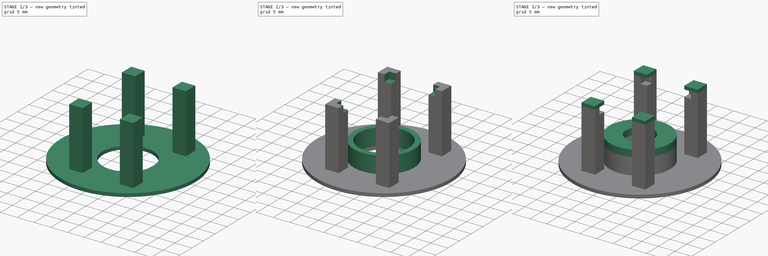
[diagram: build sequence overview — one tinted view per stage of 3, left to right]
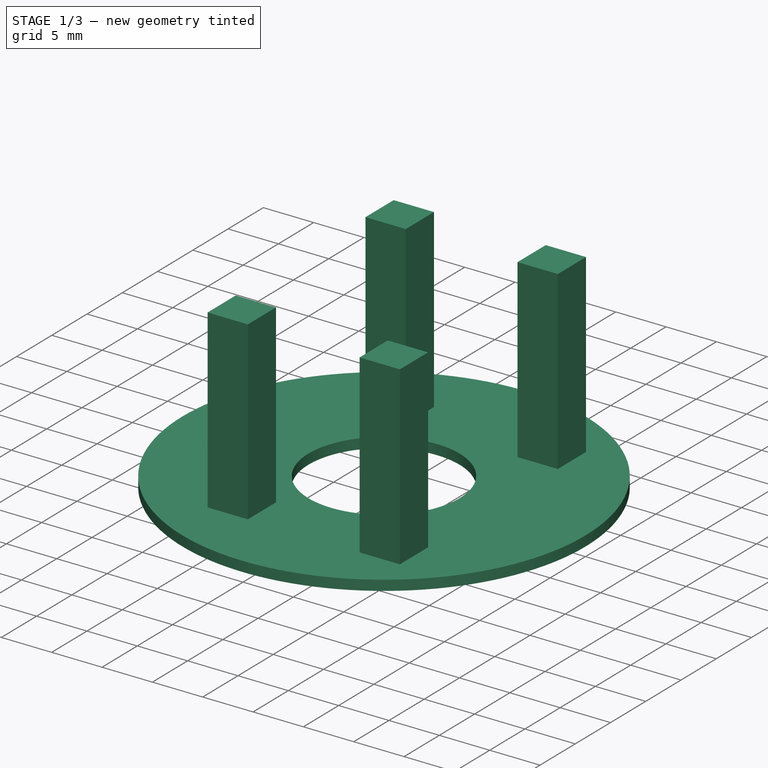
[diagram: stage 1 of 3 — iso view after this stage's code; geometry added in this stage tinted green]
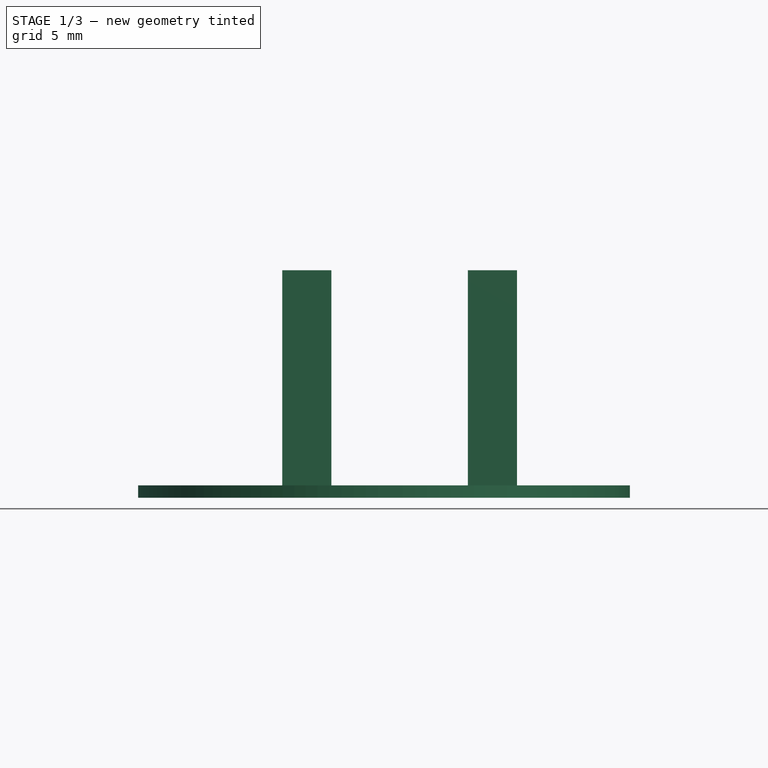
[diagram: stage 1 of 3 — front view after this stage's code; geometry added in this stage tinted green]
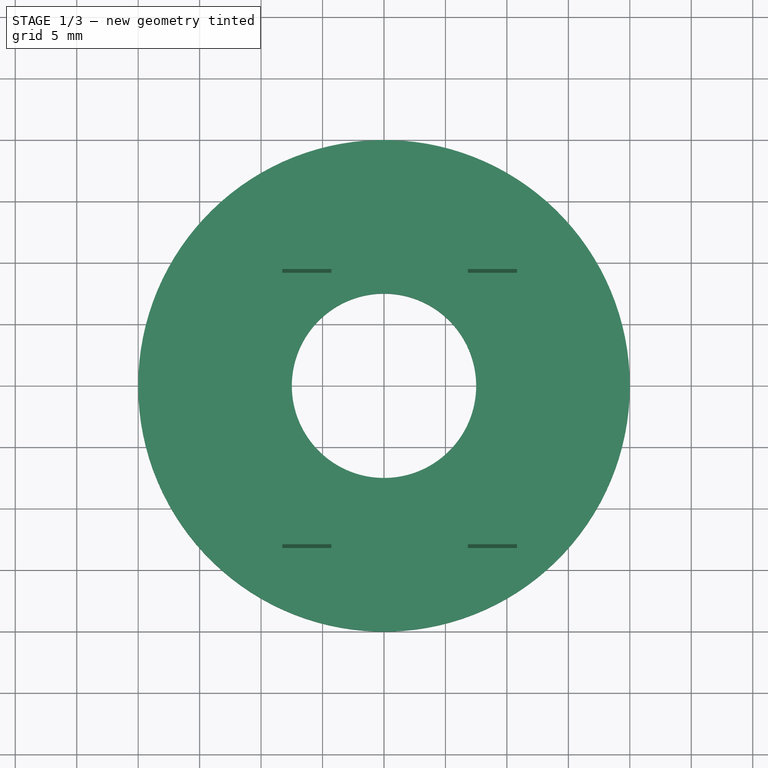
[diagram: stage 1 of 3 — top view after this stage's code; geometry added in this stage tinted green]
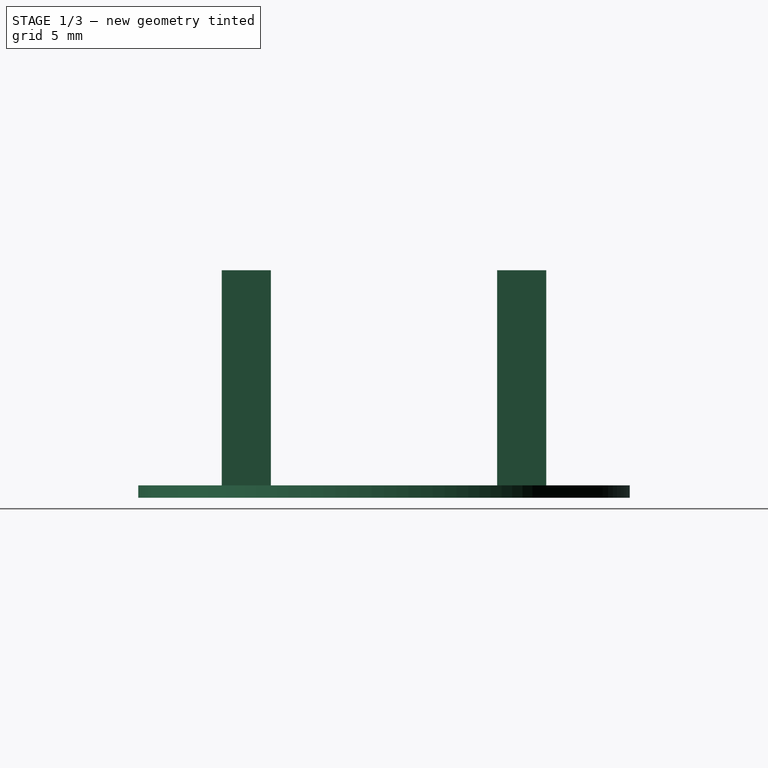
[diagram: stage 1 of 3 — right view after this stage's code; geometry added in this stage tinted green]
FCSTD DOCUMENT  (FreeCAD 0.19R24291 (Git))
Label: windDirectionPCB
License: All rights reserved
LicenseURL: http://en.wikipedia.org/wiki/All_rights_reserved
objects: Sketcher::SketchObject×6, PartDesign::Pad×5, PartDesign::Pocket×1, PartDesign::Body×1
note: 19 computed .brp shape members not serialized (recipe doc carries the construction recipe); baked Part::Feature solids carry a one-line shape summary decoded from their .brp

FEATURE [Sketcher::SketchObject] Sketch
  FullyConstrained = true
  MapMode = 5
  Support = -> [XY_Plane]
  sketch-geometry (2):
    g0: Circle CenterX=0 CenterY=0 CenterZ=0 NormalX=0 NormalY=0 NormalZ=1 AngleXU=0 Radius=20
    g1: Circle CenterX=0 CenterY=0 CenterZ=0 NormalX=0 NormalY=0 NormalZ=1 AngleXU=0 Radius=7.5
  constraints (4):
    c: Coincident(g0,g-1)
    c: Coincident(g1,g0)
    c: Radius(g1) = 7.5
    c: Radius(g0) = 20
FEATURE [PartDesign::Pad] Pad
  Direction = (1,1,1)
  Length = 1
  Length2 = 100
  Profile = -> Sketch
  Type = 0
FEATURE [Sketcher::SketchObject] Sketch001
  FullyConstrained = true
  MapMode = 5
  Placement = pos=(0,0,1) rot=(0,0,1;0rad)
  Support = -> [Pad]
  sketch-geometry (20):
    g0: LineSegment StartX=-8.28 StartY=13.2 StartZ=0 EndX=-4.28 EndY=13.2 EndZ=0
    g1: LineSegment StartX=-4.28 StartY=13.2 StartZ=0 EndX=-4.28 EndY=9.2 EndZ=0
    g2: LineSegment StartX=-4.28 StartY=9.2 StartZ=0 EndX=-8.28 EndY=9.2 EndZ=0
    g3: LineSegment StartX=-8.28 StartY=9.2 StartZ=0 EndX=-8.28 EndY=13.2 EndZ=0
    g4: LineSegment StartX=6.82 StartY=13.2 StartZ=0 EndX=10.82 EndY=13.2 EndZ=0
    g5: LineSegment StartX=10.82 StartY=13.2 StartZ=0 EndX=10.82 EndY=9.2 EndZ=0
    g6: LineSegment StartX=10.82 StartY=9.2 StartZ=0 EndX=6.82 EndY=9.2 EndZ=0
    g7: LineSegment StartX=6.82 StartY=9.2 StartZ=0 EndX=6.82 EndY=13.2 EndZ=0
    g8: LineSegment StartX=-8.28 StartY=-9.2 StartZ=0 EndX=-4.28 EndY=-9.2 EndZ=0
    g9: LineSegment StartX=-4.28 StartY=-9.2 StartZ=0 EndX=-4.28 EndY=-13.2 EndZ=0
    g10: LineSegment StartX=-4.28 StartY=-13.2 StartZ=0 EndX=-8.28 EndY=-13.2 EndZ=0
    g11: LineSegment StartX=-8.28 StartY=-13.2 StartZ=0 EndX=-8.28 EndY=-9.2 EndZ=0
    g12: LineSegment StartX=6.82 StartY=-9.2 StartZ=0 EndX=10.82 EndY=-9.2 EndZ=0
    g13: LineSegment StartX=10.82 StartY=-9.2 StartZ=0 EndX=10.82 EndY=-13.2 EndZ=0
    g14: LineSegment StartX=10.82 StartY=-13.2 StartZ=0 EndX=6.82 EndY=-13.2 EndZ=0
    g15: LineSegment StartX=6.82 StartY=-13.2 StartZ=0 EndX=6.82 EndY=-9.2 EndZ=0
    g16: LineSegment StartX=-4.28 StartY=13.2 StartZ=0 EndX=6.82 EndY=13.2 EndZ=0
    g17: LineSegment StartX=-8.28 StartY=9.2 StartZ=0 EndX=-8.28 EndY=-9.2 EndZ=0
    g18: LineSegment StartX=-4.28 StartY=-13.2 StartZ=0 EndX=6.82 EndY=-13.2 EndZ=0
    g19: LineSegment StartX=10.82 StartY=9.2 StartZ=0 EndX=10.82 EndY=-9.2 EndZ=0
  constraints (55):
    c: Coincident(g0,g1)
    c: Coincident(g1,g2)
    c: Coincident(g2,g3)
    c: Coincident(g3,g0)
    c: Horizontal(g0)
    c: Horizontal(g2)
    c: Vertical(g1)
    c: Vertical(g3)
    c: DistanceX(g0,g0) = 4
    c: DistanceY(g1,g1) = 4
    c: Coincident(g4,g5)
    c: Coincident(g5,g6)
    c: Coincident(g6,g7)
    c: Coincident(g7,g4)
    c: Horizontal(g4)
    c: Horizontal(g6)
    c: Vertical(g5)
    c: Vertical(g7)
    c: Equal(g0,g4) = 4
    c: Equal(g1,g5) = 4
    c: Coincident(g8,g9)
    c: Coincident(g9,g10)
    c: Coincident(g10,g11)
    c: Coincident(g11,g8)
    c: Horizontal(g8)
    c: Horizontal(g10)
    c: Vertical(g9)
    c: Vertical(g11)
    c: Equal(g0,g8) = 4
    c: Equal(g1,g9) = 4
    c: Coincident(g12,g13)
    c: Coincident(g13,g14)
    c: Coincident(g14,g15)
    c: Coincident(g15,g12)
    c: Horizontal(g12)
    c: Horizontal(g14)
    c: Vertical(g13)
    c: Vertical(g15)
    c: Coincident(g16,g0)
    c: Coincident(g16,g4)
    c: Horizontal(g16)
    c: Coincident(g17,g2)
    c: Coincident(g17,g8)
    c: Vertical(g17)
    c: Coincident(g18,g9)
    c: Coincident(g18,g14)
    c: Horizontal(g18)
    c: Coincident(g19,g5)
    c: Coincident(g19,g12)
    c: Equal(g16,g18)
    c: Equal(g17,g19)
    c: DistanceX(g16,g16) = 11.1
    c: DistanceY(g19,g19) = 18.4
    c: Symmetric(g5,g12,g-1)
    c: DistanceX(g1,g-1) = 4.28
FEATURE [PartDesign::Pad] Pad001
  BaseFeature = -> Pad
  Direction = (1,1,1)
  Length = 17.5
  Length2 = 100
  Profile = -> Sketch001
  Type = 0
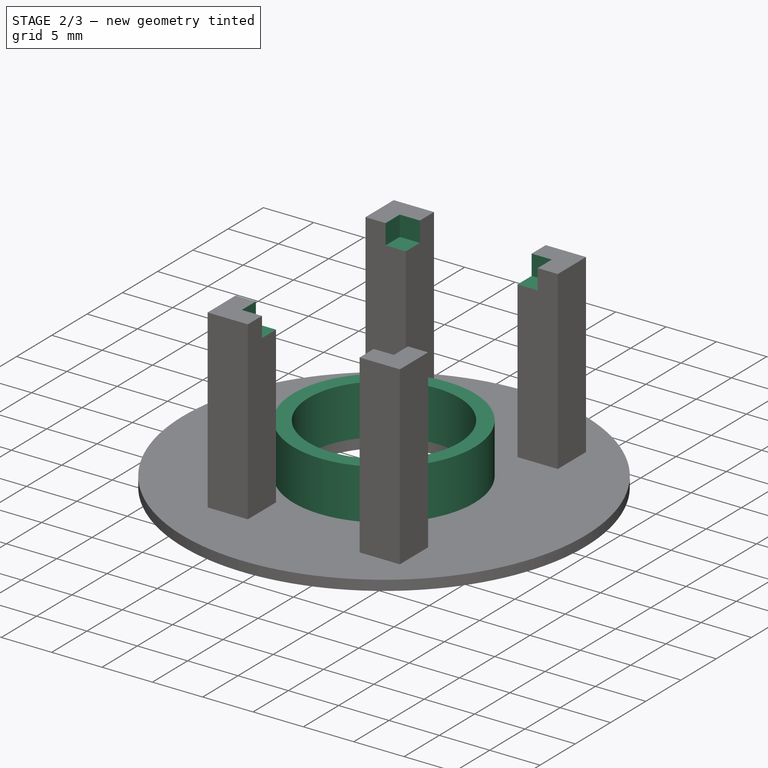
[diagram: stage 2 of 3 — iso view after this stage's code; geometry added in this stage tinted green]
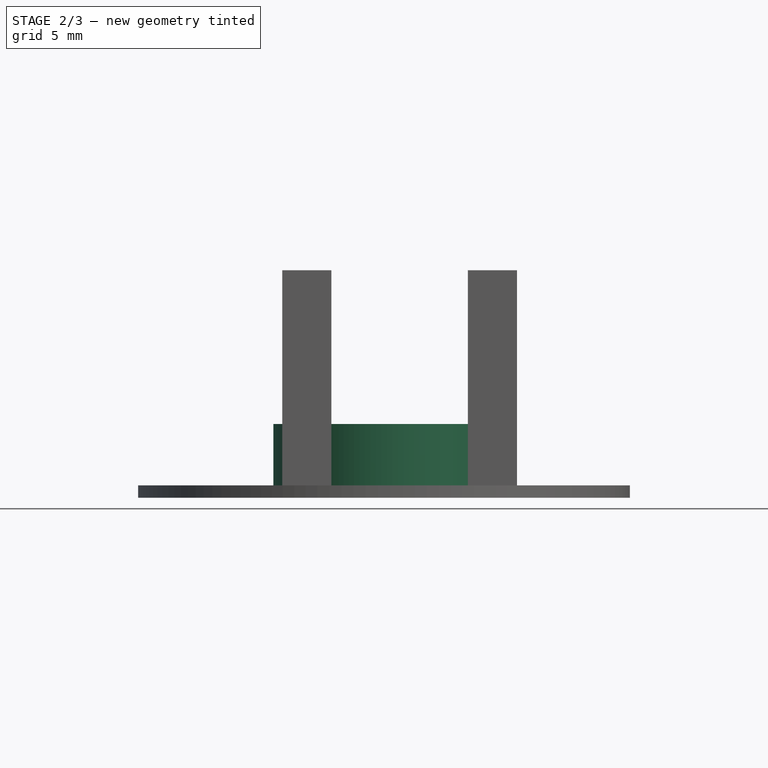
[diagram: stage 2 of 3 — front view after this stage's code; geometry added in this stage tinted green]
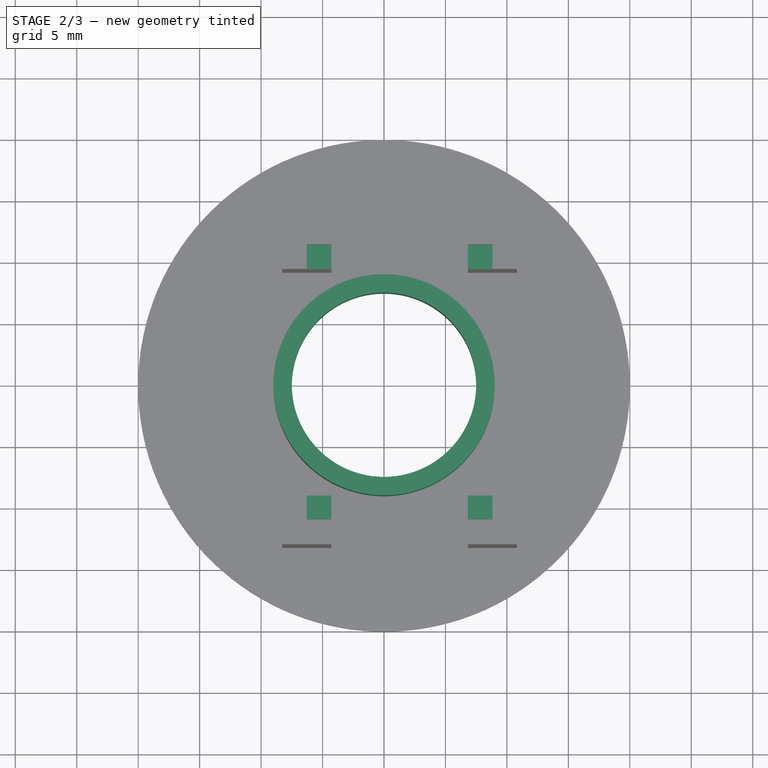
[diagram: stage 2 of 3 — top view after this stage's code; geometry added in this stage tinted green]
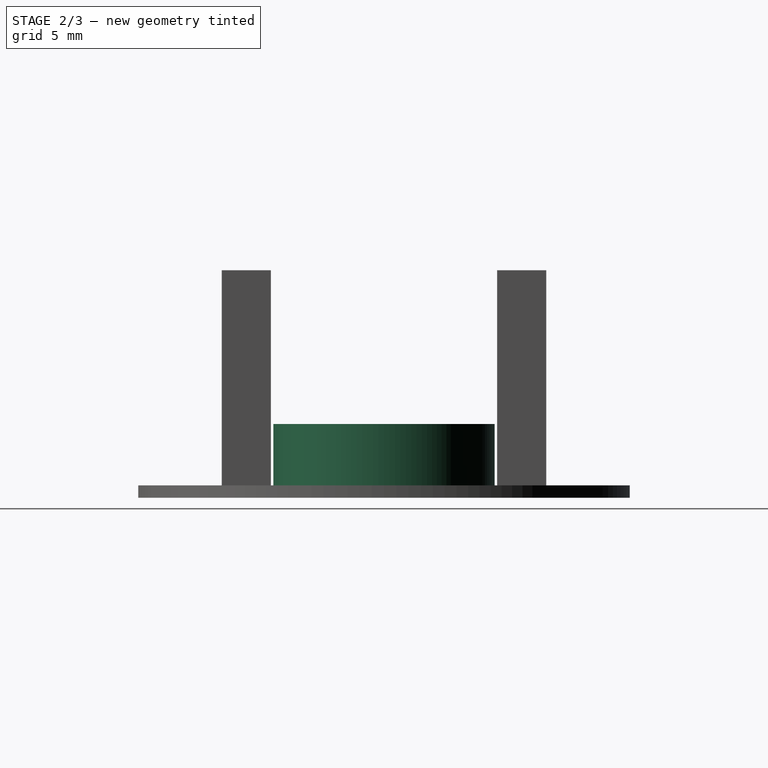
[diagram: stage 2 of 3 — right view after this stage's code; geometry added in this stage tinted green]
FEATURE [Sketcher::SketchObject] Sketch002
  ExternalGeometry = -> [Pad001]
  FullyConstrained = true
  MapMode = 5
  Placement = pos=(0,0,18.5) rot=(0,0,1;0rad)
  Support = -> [Pad001]
  sketch-geometry (16):
    g0: LineSegment StartX=-4.28 StartY=9.2 StartZ=0 EndX=-6.28 EndY=9.2 EndZ=0
    g1: LineSegment StartX=-6.28 StartY=9.2 StartZ=0 EndX=-6.28 EndY=11.2 EndZ=0
    g2: LineSegment StartX=-6.28 StartY=11.2 StartZ=0 EndX=-4.28 EndY=11.2 EndZ=0
    g3: LineSegment StartX=-4.28 StartY=11.2 StartZ=0 EndX=-4.28 EndY=9.2 EndZ=0
    g4: LineSegment StartX=8.82 StartY=9.2 StartZ=0 EndX=6.82 EndY=9.2 EndZ=0
    g5: LineSegment StartX=6.82 StartY=9.2 StartZ=0 EndX=6.82 EndY=11.2 EndZ=0
    g6: LineSegment StartX=6.82 StartY=11.2 StartZ=0 EndX=8.82 EndY=11.2 EndZ=0
    g7: LineSegment StartX=8.82 StartY=11.2 StartZ=0 EndX=8.82 EndY=9.2 EndZ=0
    g8: LineSegment StartX=-4.28 StartY=-11.2 StartZ=0 EndX=-6.28 EndY=-11.2 EndZ=0
    g9: LineSegment StartX=-6.28 StartY=-11.2 StartZ=0 EndX=-6.28 EndY=-9.2 EndZ=0
    g10: LineSegment StartX=-6.28 StartY=-9.2 StartZ=0 EndX=-4.28 EndY=-9.2 EndZ=0
    g11: LineSegment StartX=-4.28 StartY=-9.2 StartZ=0 EndX=-4.28 EndY=-11.2 EndZ=0
    g12: LineSegment StartX=8.82 StartY=-11.2 StartZ=0 EndX=6.82 EndY=-11.2 EndZ=0
    g13: LineSegment StartX=6.82 StartY=-11.2 StartZ=0 EndX=6.82 EndY=-9.2 EndZ=0
    g14: LineSegment StartX=6.82 StartY=-9.2 StartZ=0 EndX=8.82 EndY=-9.2 EndZ=0
    g15: LineSegment StartX=8.82 StartY=-9.2 StartZ=0 EndX=8.82 EndY=-11.2 EndZ=0
  constraints (44):
    c: Coincident(g0,g1)
    c: Coincident(g1,g2)
    c: Coincident(g2,g3)
    c: Coincident(g3,g0)
    c: Horizontal(g0)
    c: Horizontal(g2)
    c: Vertical(g1)
    c: Vertical(g3)
    c: Coincident(g0,g-3)
    c: DistanceX(g2,g2) = 2
    c: DistanceY(g1,g1) = 2
    c: Coincident(g4,g5)
    c: Coincident(g5,g6)
    c: Coincident(g6,g7)
    c: Coincident(g7,g4)
    c: Horizontal(g4)
    c: Horizontal(g6)
    c: Vertical(g5)
    c: Vertical(g7)
    c: Equal(g2,g6) = 2
    c: Equal(g1,g5) = 2
    c: Coincident(g4,g-4)
    c: Coincident(g8,g9)
    c: Coincident(g9,g10)
    c: Coincident(g10,g11)
    c: Coincident(g11,g8)
    c: Horizontal(g8)
    c: Horizontal(g10)
    c: Vertical(g9)
    c: Vertical(g11)
    c: Equal(g2,g10) = 2
    c: Equal(g1,g9) = 2
    c: Coincident(g12,g13)
    c: Coincident(g13,g14)
    c: Coincident(g14,g15)
    c: Coincident(g15,g12)
    c: Horizontal(g12)
    c: Horizontal(g14)
    c: Vertical(g13)
    c: Vertical(g15)
    c: Equal(g2,g14) = 2
    c: Equal(g1,g13) = 2
    c: Coincident(g10,g-5)
    c: Coincident(g13,g-6)
FEATURE [PartDesign::Pocket] Pocket
  BaseFeature = -> Pad001
  Length = 2
  Length2 = 100
  Profile = -> Sketch002
  Type = 0
FEATURE [Sketcher::SketchObject] Sketch003
  FullyConstrained = true
  MapMode = 5
  Placement = pos=(0,0,1) rot=(0,0,1;0rad)
  Support = -> [Pocket]
  sketch-geometry (2):
    g0: Circle CenterX=0 CenterY=0 CenterZ=0 NormalX=0 NormalY=0 NormalZ=1 AngleXU=0 Radius=9
    g1: Circle CenterX=0 CenterY=0 CenterZ=0 NormalX=0 NormalY=0 NormalZ=1 AngleXU=0 Radius=7.5
  constraints (4):
    c: Coincident(g0,g-1)
    c: Coincident(g1,g0)
    c: Radius(g1) = 7.5
    c: Radius(g0) = 9
FEATURE [PartDesign::Pad] Pad002
  BaseFeature = -> Pocket
  Direction = (1,1,1)
  Length = 5
  Length2 = 100
  Profile = -> Sketch003
  Type = 0
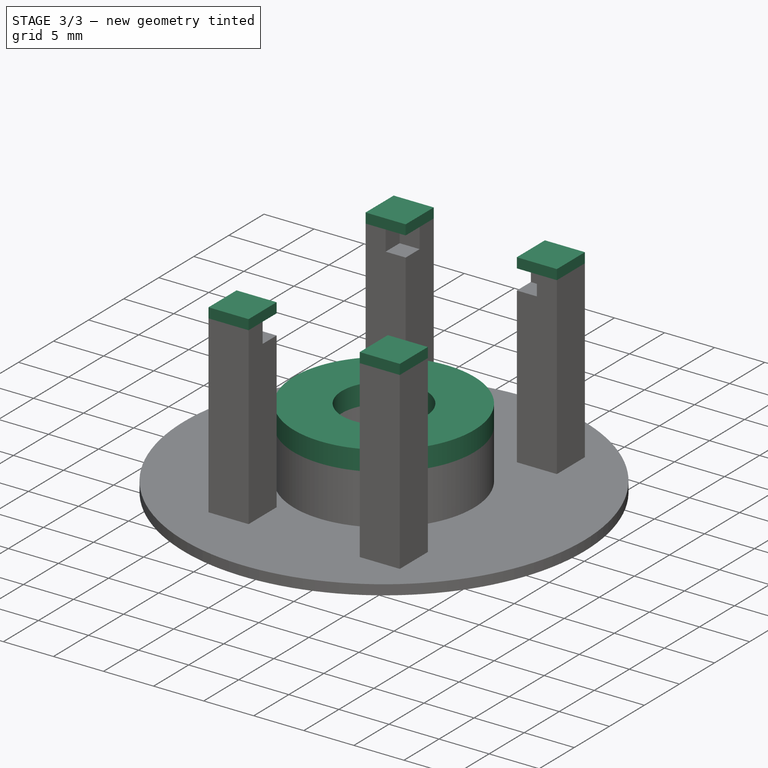
[diagram: stage 3 of 3 — iso view after this stage's code; geometry added in this stage tinted green]
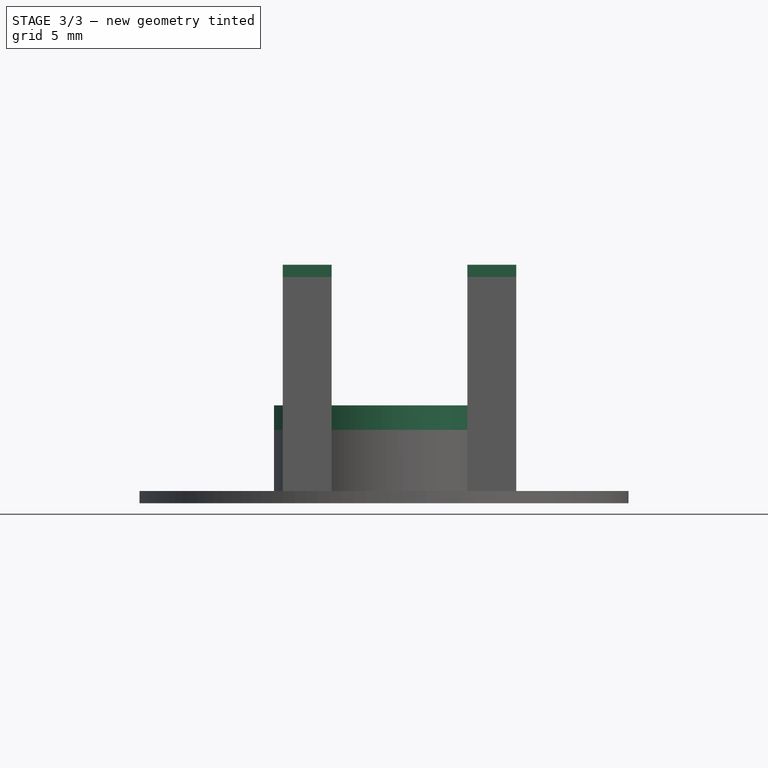
[diagram: stage 3 of 3 — front view after this stage's code; geometry added in this stage tinted green]
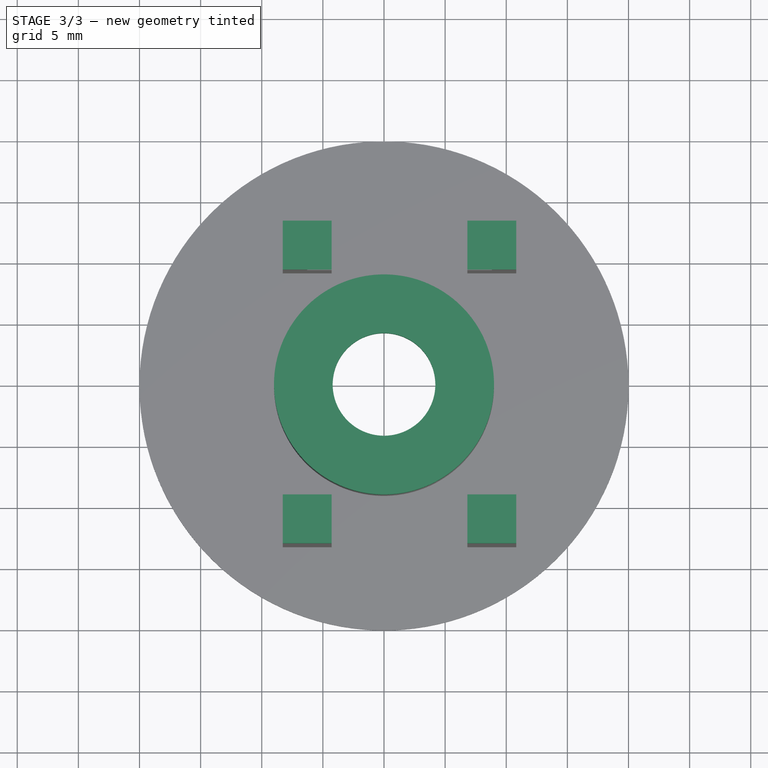
[diagram: stage 3 of 3 — top view after this stage's code; geometry added in this stage tinted green]
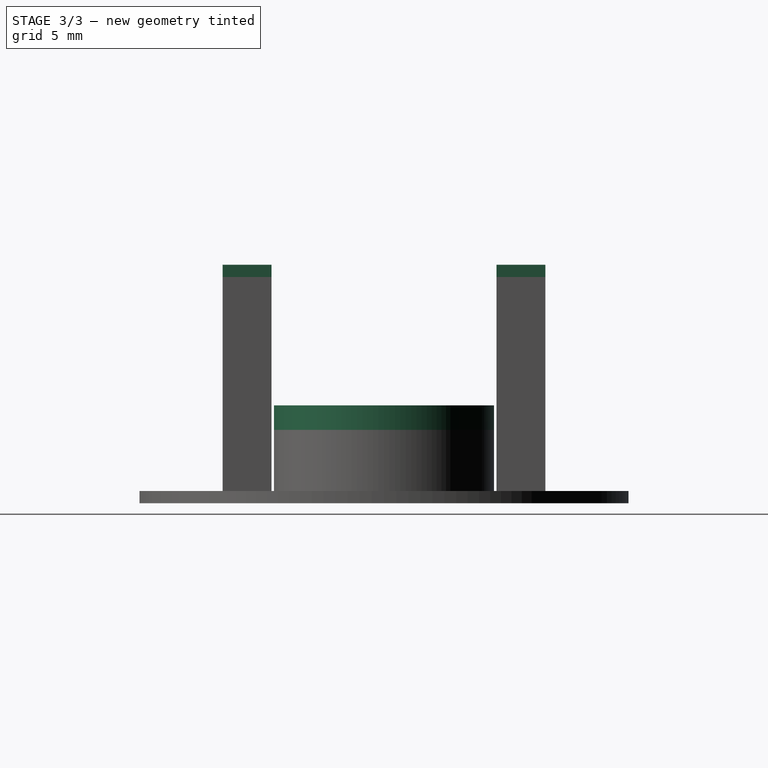
[diagram: stage 3 of 3 — right view after this stage's code; geometry added in this stage tinted green]
FEATURE [Sketcher::SketchObject] Sketch004
  FullyConstrained = true
  MapMode = 5
  Placement = pos=(0,0,6) rot=(0,0,1;0rad)
  Support = -> [Pad002]
  sketch-geometry (2):
    g0: Circle CenterX=0 CenterY=0 CenterZ=0 NormalX=0 NormalY=0 NormalZ=1 AngleXU=0 Radius=9
    g1: Circle CenterX=0 CenterY=0 CenterZ=0 NormalX=0 NormalY=0 NormalZ=1 AngleXU=0 Radius=4.2
  constraints (4):
    c: Coincident(g0,g-1)
    c: Coincident(g1,g0)
    c: Radius(g0) = 9
    c: Radius(g1) = 4.2
FEATURE [PartDesign::Pad] Pad003
  BaseFeature = -> Pad002
  Direction = (1,1,1)
  Length = 2
  Length2 = 100
  Profile = -> Sketch004
  Type = 0
FEATURE [Sketcher::SketchObject] Sketch005
  ExternalGeometry = -> [Pad003]
  FullyConstrained = true
  MapMode = 5
  Placement = pos=(0,0,18.5) rot=(0,0,1;0rad)
  Support = -> [Pad003]
  sketch-geometry (16):
    g0: LineSegment StartX=-8.28 StartY=13.2 StartZ=0 EndX=-4.28 EndY=13.2 EndZ=0
    g1: LineSegment StartX=-4.28 StartY=13.2 StartZ=0 EndX=-4.28 EndY=9.2 EndZ=0
    g2: LineSegment StartX=-4.28 StartY=9.2 StartZ=0 EndX=-8.28 EndY=9.2 EndZ=0
    g3: LineSegment StartX=-8.28 StartY=9.2 StartZ=0 EndX=-8.28 EndY=13.2 EndZ=0
    g4: LineSegment StartX=-8.28 StartY=-9.2 StartZ=0 EndX=-4.28 EndY=-9.2 EndZ=0
    g5: LineSegment StartX=-4.28 StartY=-9.2 StartZ=0 EndX=-4.28 EndY=-13.2 EndZ=0
    g6: LineSegment StartX=-4.28 StartY=-13.2 StartZ=0 EndX=-8.28 EndY=-13.2 EndZ=0
    g7: LineSegment StartX=-8.28 StartY=-13.2 StartZ=0 EndX=-8.28 EndY=-9.2 EndZ=0
    g8: LineSegment StartX=6.82 StartY=13.2 StartZ=0 EndX=10.82 EndY=13.2 EndZ=0
    g9: LineSegment StartX=10.82 StartY=13.2 StartZ=0 EndX=10.82 EndY=9.2 EndZ=0
    g10: LineSegment StartX=10.82 StartY=9.2 StartZ=0 EndX=6.82 EndY=9.2 EndZ=0
    g11: LineSegment StartX=6.82 StartY=9.2 StartZ=0 EndX=6.82 EndY=13.2 EndZ=0
    g12: LineSegment StartX=6.82 StartY=-9.2 StartZ=0 EndX=10.82 EndY=-9.2 EndZ=0
    g13: LineSegment StartX=10.82 StartY=-9.2 StartZ=0 EndX=10.82 EndY=-13.2 EndZ=0
    g14: LineSegment StartX=10.82 StartY=-13.2 StartZ=0 EndX=6.82 EndY=-13.2 EndZ=0
    g15: LineSegment StartX=6.82 StartY=-13.2 StartZ=0 EndX=6.82 EndY=-9.2 EndZ=0
  constraints (44):
    c: Coincident(g0,g1)
    c: Coincident(g1,g2)
    c: Coincident(g2,g3)
    c: Coincident(g3,g0)
    c: Horizontal(g0)
    c: Horizontal(g2)
    c: Vertical(g1)
    c: Vertical(g3)
    c: Coincident(g0,g-3)
    c: Equal(g0,g1)
    c: DistanceX(g0,g0) = 4
    c: Coincident(g4,g5)
    c: Coincident(g5,g6)
    c: Coincident(g6,g7)
    c: Coincident(g7,g4)
    c: Horizontal(g4)
    c: Horizontal(g6)
    c: Vertical(g5)
    c: Vertical(g7)
    c: Equal(g4,g5)
    c: Equal(g0,g4) = 4
    c: Coincident(g8,g9)
    c: Coincident(g9,g10)
    c: Coincident(g10,g11)
    c: Coincident(g11,g8)
    c: Horizontal(g8)
    c: Horizontal(g10)
    c: Vertical(g9)
    c: Vertical(g11)
    c: Equal(g8,g9)
    c: Equal(g0,g8) = 4
    c: Coincident(g12,g13)
    c: Coincident(g13,g14)
    c: Coincident(g14,g15)
    c: Coincident(g15,g12)
    c: Horizontal(g12)
    c: Horizontal(g14)
    c: Vertical(g13)
    c: Vertical(g15)
    c: Equal(g12,g13)
    c: Equal(g0,g12) = 4
    c: Coincident(g6,g-4)
    c: Coincident(g13,g-5)
    c: Coincident(g8,g-6)
FEATURE [PartDesign::Pad] Pad004
  BaseFeature = -> Pad003
  Direction = (1,1,1)
  Length = 1
  Length2 = 100
  Profile = -> Sketch005
  Type = 0
FEATURE [PartDesign::Body] Body
  Group = -> [Sketch,Pad,Sketch001,Pad001,Sketch002,Pocket,Sketch003,Pad002,Sketch004,Pad003,Sketch005,Pad004]
  Origin = -> Origin
  Tip = -> Pad004
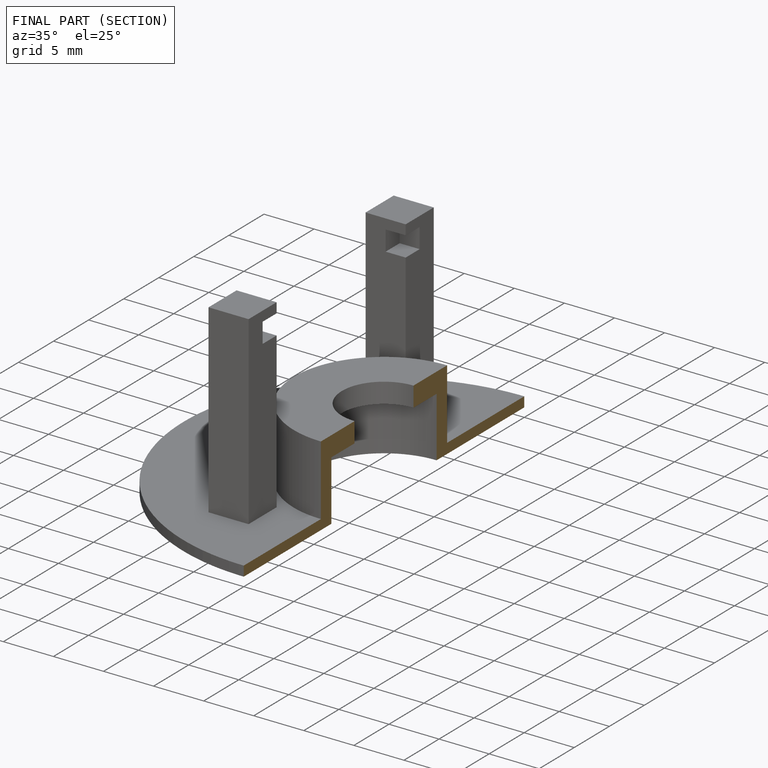
[diagram: finished part — half-section view (interior)]
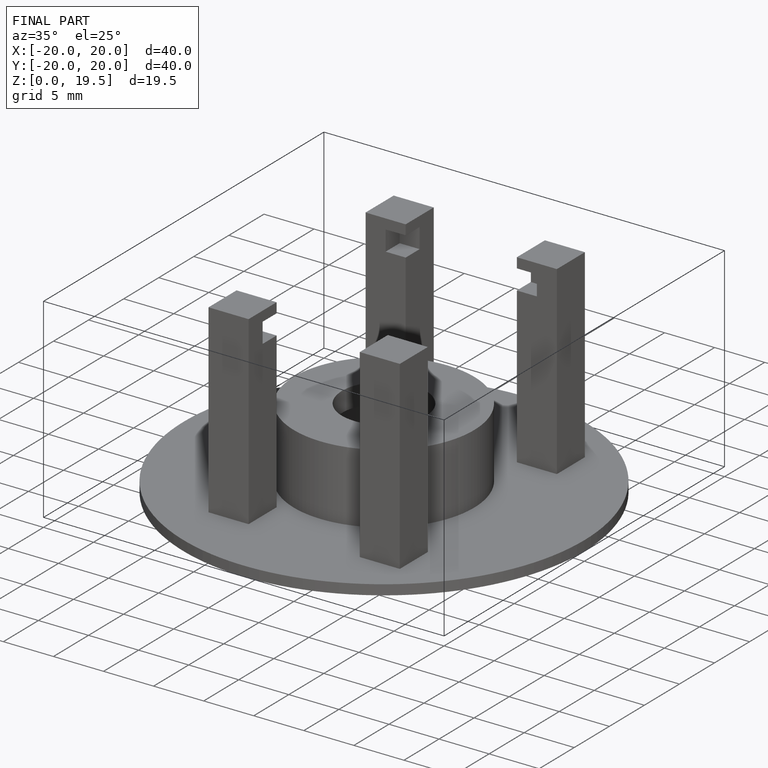
[diagram: finished part — iso view with bounding-box wireframe]
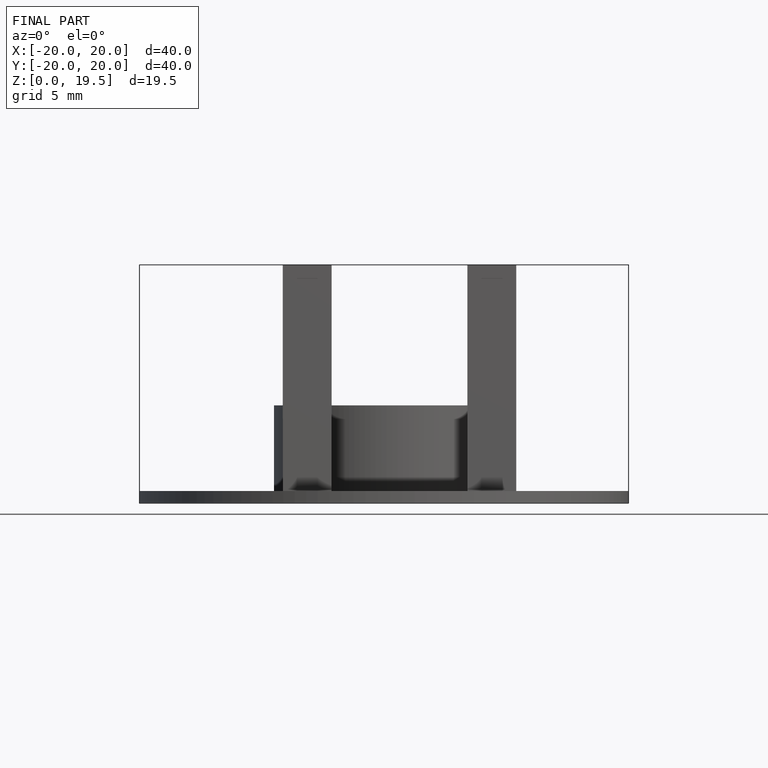
[diagram: finished part — front view with bounding-box wireframe]
